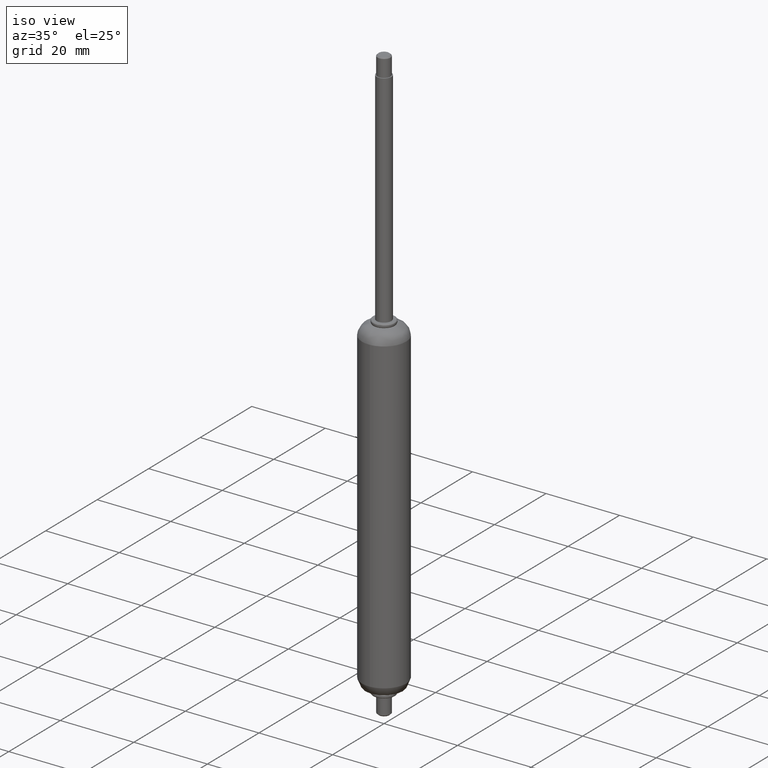
[diagram: clean part render]
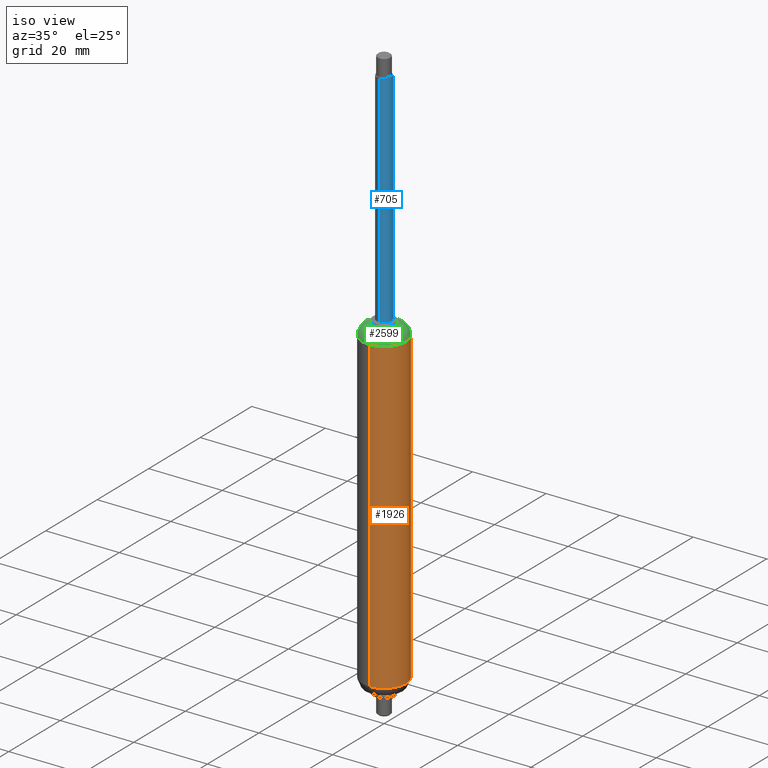
[diagram: same view with three faces highlighted in distinct colors, each labeled with its STEP entity id]
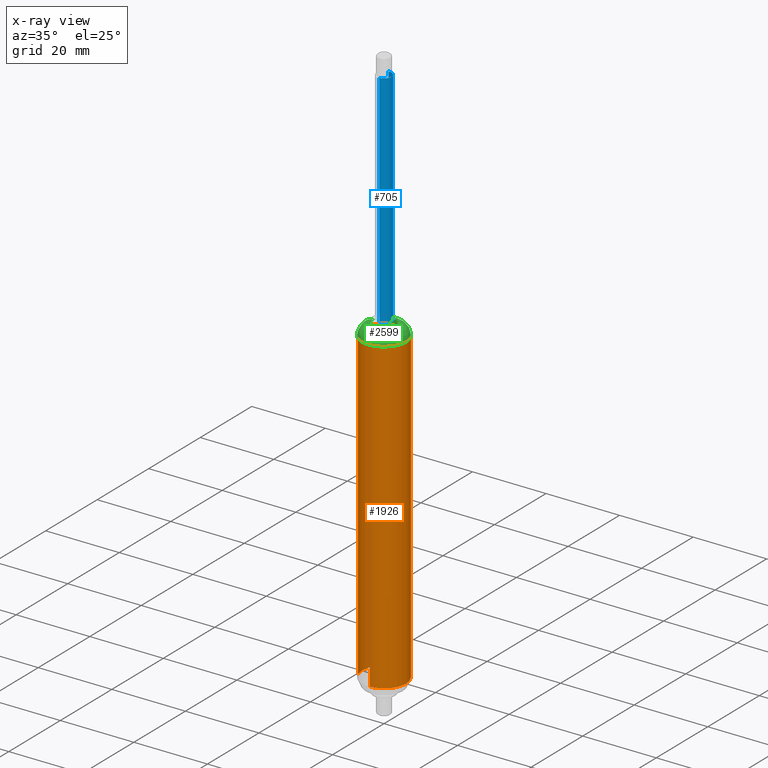
[diagram: x-ray of the same camera — body ghosted, the three highlighted faces saturated]
A machine part, iso view with three faces highlighted in distinct colors.
The next image is the same camera in x-ray (body ghosted, the three faces saturated) — at least one of them is partly hidden behind the body in this view.
Their STEP definitions:

[orange] entity #1926 — the highlighted face is a freeform B-spline surface patch.
#1760=CARTESIAN_POINT('',(-5.616861472659100,-2.109707846349191,-0.899999899999991));
#1761=CARTESIAN_POINT('',(-5.933784116190025,-1.265936710292303,-0.899999899999991));
#1762=CARTESIAN_POINT('',(-5.988808790530316,-0.366291237209097,-0.899999899999991));
#1763=CARTESIAN_POINT('',(-6.355100027739414,5.622517553321424,-0.899999899999991));
#1764=CARTESIAN_POINT('',(-0.366291237208891,5.988808790530522,-0.899999899999991));
#1765=CARTESIAN_POINT('',(5.622517553321631,6.355100027739619,-0.899999899999991));
#1766=CARTESIAN_POINT('',(5.988808790530728,0.366291237209097,-0.899999899999991));
#1767=CARTESIAN_POINT('',(6.355100027739825,-5.622517553321424,-0.899999899999991));
#1768=CARTESIAN_POINT('',(0.366291237209303,-5.988808790530522,-0.899999899999991));
#1769=CARTESIAN_POINT('',(-5.616861472659100,-2.109707846349191,-89.152504102500288));
#1770=CARTESIAN_POINT('',(-5.933784116190025,-1.265936710292303,-89.152504102500288));
#1771=CARTESIAN_POINT('',(-5.988808790530316,-0.366291237209097,-89.152504102500288));
#1772=CARTESIAN_POINT('',(-6.355100027739414,5.622517553321424,-89.152504102500288));
#1773=CARTESIAN_POINT('',(-0.366291237208891,5.988808790530522,-89.152504102500288));
#1774=CARTESIAN_POINT('',(5.622517553321631,6.355100027739619,-89.152504102500288));
#1775=CARTESIAN_POINT('',(5.988808790530728,0.366291237209097,-89.152504102500288));
#1776=CARTESIAN_POINT('',(6.355100027739825,-5.622517553321424,-89.152504102500288));
#1777=CARTESIAN_POINT('',(0.366291237209303,-5.988808790530522,-89.152504102500288));
#1785=(BOUNDED_SURFACE()B_SPLINE_SURFACE(2,1,((#1760,#1769),(#1761,#1770),(#1762,#1771),(#1763,#1772),(#1764,#1773),(#1765,#1774),(#1766,#1775),(#1767,#1776),(#1768,#1777)),.UNSPECIFIED.,.F.,.F.,.U.)B_SPLINE_SURFACE_WITH_KNOTS((3,2,2,2,3),(2,2),(0.0,1.988225099390630,11.929350596343779,21.870476093296929,31.811601590250088),(0.0,88.252504202500305),.UNSPECIFIED.)GEOMETRIC_REPRESENTATION_ITEM()RATIONAL_B_SPLINE_SURFACE(((0.906274169979695,0.906274169979695),(0.941421356237309,0.941421356237309),(1.0,1.0),(0.707106781186548,0.707106781186548),(1.0,1.0),(0.707106781186548,0.707106781186548),(1.0,1.0),(0.707106781186548,0.707106781186548),(1.0,1.0)))REPRESENTATION_ITEM('')SURFACE());
#1786=CARTESIAN_POINT('',(-5.616861472640773,-2.109707846397987,-87.000004000000004));
#1787=VERTEX_POINT('',#1786);
#1788=CARTESIAN_POINT('',(-5.999999999999116,0.0,-87.000004000000004));
#1789=VERTEX_POINT('',#1788);
#1790=CARTESIAN_POINT('',(-5.616861472640772,-2.109707846397988,-87.000004000000004));
#1791=CARTESIAN_POINT('',(-5.999999999999114,-1.089644316454284,-87.000004000000004));
#1792=CARTESIAN_POINT('',(-5.999999999999114,0.0,-87.000004000000004));
#1800=(BOUNDED_CURVE()B_SPLINE_CURVE(2,(#1790,#1791,#1792),.UNSPECIFIED.,.F.,.U.)B_SPLINE_CURVE_WITH_KNOTS((3,3),(0.940284170896165,1.0),.UNSPECIFIED.)CURVE()GEOMETRIC_REPRESENTATION_ITEM()RATIONAL_B_SPLINE_CURVE((0.893499554632407,0.930038554398655,1.0))REPRESENTATION_ITEM(''));
#1801=EDGE_CURVE('',#1787,#1789,#1800,.T.);
#1802=ORIENTED_EDGE('',*,*,#1801,.F.);
#1803=CARTESIAN_POINT('',(-5.616861472640773,-2.109707846397987,-2.999999999999997));
#1804=VERTEX_POINT('',#1803);
#1805=CARTESIAN_POINT('',(-5.616861472640773,-2.109707846397987,-2.999999999999997));
#1806=CARTESIAN_POINT('',(-5.616861472640773,-2.109707846397987,-87.000004000000004));
#1807=QUASI_UNIFORM_CURVE('',1,(#1805,#1806),.UNSPECIFIED.,.F.,.U.);
#1808=EDGE_CURVE('',#1804,#1787,#1807,.T.);
#1809=ORIENTED_EDGE('',*,*,#1808,.F.);
#1810=CARTESIAN_POINT('',(-5.999999999999116,0.0,-3.0));
#1811=VERTEX_POINT('',#1810);
#1812=CARTESIAN_POINT('',(-5.616861472640772,-2.109707846397988,-2.999999999999997));
#1813=CARTESIAN_POINT('',(-5.999999999999114,-1.089644316454284,-3.0));
#1814=CARTESIAN_POINT('',(-5.999999999999114,0.0,-3.0));
#1822=(BOUNDED_CURVE()B_SPLINE_CURVE(2,(#1812,#1813,#1814),.UNSPECIFIED.,.F.,.U.)B_SPLINE_CURVE_WITH_KNOTS((3,3),(0.940284170896165,1.0),.UNSPECIFIED.)CURVE()GEOMETRIC_REPRESENTATION_ITEM()RATIONAL_B_SPLINE_CURVE((0.893499554632407,0.930038554398655,1.0))REPRESENTATION_ITEM(''));
#1823=EDGE_CURVE('',#1804,#1811,#1822,.T.);
#1824=ORIENTED_EDGE('',*,*,#1823,.T.);
#1825=CARTESIAN_POINT('',(-2.119811799980140,5.613056024364621,-3.000000000000057));
#1826=VERTEX_POINT('',#1825);
#1827=CARTESIAN_POINT('',(-5.999999999999114,0.0,-3.0));
#1828=CARTESIAN_POINT('',(-5.999999999999114,4.147674475181805,-3.0));
#1829=CARTESIAN_POINT('',(-2.119811799980141,5.613056024364621,-3.000000000000057));
#1837=(BOUNDED_CURVE()B_SPLINE_CURVE(2,(#1827,#1828,#1829),.UNSPECIFIED.,.F.,.U.)B_SPLINE_CURVE_WITH_KNOTS((3,3),(0.0,0.189999999998876),.UNSPECIFIED.)CURVE()GEOMETRIC_REPRESENTATION_ITEM()RATIONAL_B_SPLINE_CURVE((1.0,0.777401153703094,0.893152553775483))REPRESENTATION_ITEM(''));
#1838=EDGE_CURVE('',#1811,#1826,#1837,.T.);
#1839=ORIENTED_EDGE('',*,*,#1838,.T.);
#1840=CARTESIAN_POINT('',(5.999999999999527,0.0,-3.0));
#1841=VERTEX_POINT('',#1840);
#1842=CARTESIAN_POINT('',(-2.119811799980141,5.613056024364621,-3.000000000000057));
#1843=CARTESIAN_POINT('',(-1.095221686119702,5.999999999999321,-3.000000000000001));
#1844=CARTESIAN_POINT('',(2.060574E-013,5.999999999999321,-3.0));
#1845=CARTESIAN_POINT('',(5.999999999999526,5.999999999999320,-3.0));
#1846=CARTESIAN_POINT('',(5.999999999999527,0.0,-3.0));
#1854=(BOUNDED_CURVE()B_SPLINE_CURVE(2,(#1842,#1843,#1844,#1845,#1846),.UNSPECIFIED.,.F.,.U.)B_SPLINE_CURVE_WITH_KNOTS((3,2,3),(0.189999999998876,0.250000000000000,0.500000000000000),.UNSPECIFIED.)CURVE()GEOMETRIC_REPRESENTATION_ITEM()RATIONAL_B_SPLINE_CURVE((0.893152553775483,0.929705627483454,1.0,0.707106781186548,1.0))REPRESENTATION_ITEM(''));
#1855=EDGE_CURVE('',#1826,#1841,#1854,.T.);
#1856=ORIENTED_EDGE('',*,*,#1855,.T.);
#1857=CARTESIAN_POINT('',(0.366291237578963,-5.988808790507914,-2.999999999999997));
#1858=VERTEX_POINT('',#1857);
#1859=CARTESIAN_POINT('',(5.999999999999527,0.0,-3.0));
#1860=CARTESIAN_POINT('',(5.999999999999526,-5.644236400735485,-3.000000000000000));
#1861=CARTESIAN_POINT('',(0.366291237578963,-5.988808790507915,-2.999999999999996));
#1869=(BOUNDED_CURVE()B_SPLINE_CURVE(2,(#1859,#1860,#1861),.UNSPECIFIED.,.F.,.U.)B_SPLINE_CURVE_WITH_KNOTS((3,3),(0.500000000000000,0.739332962220669),.UNSPECIFIED.)CURVE()GEOMETRIC_REPRESENTATION_ITEM()RATIONAL_B_SPLINE_CURVE((1.0,0.719603993308120,0.976072041627552))REPRESENTATION_ITEM(''));
#1870=EDGE_CURVE('',#1841,#1858,#1869,.T.);
#1871=ORIENTED_EDGE('',*,*,#1870,.T.);
#1872=CARTESIAN_POINT('',(0.366291237578961,-5.988808790507914,-87.000003999999990));
#1873=VERTEX_POINT('',#1872);
#1874=CARTESIAN_POINT('',(0.366291237578963,-5.988808790507914,-2.999999999999997));
#1875=CARTESIAN_POINT('',(0.366291237578961,-5.988808790507914,-87.000003999999990));
#1876=QUASI_UNIFORM_CURVE('',1,(#1874,#1875),.UNSPECIFIED.,.F.,.U.);
#1877=EDGE_CURVE('',#1858,#1873,#1876,.T.);
#1878=ORIENTED_EDGE('',*,*,#1877,.T.);
#1879=CARTESIAN_POINT('',(5.999999999999527,0.0,-87.000004000000004));
#1880=VERTEX_POINT('',#1879);
#1881=CARTESIAN_POINT('',(5.999999999999527,0.0,-87.000004000000004));
#1882=CARTESIAN_POINT('',(5.999999999999526,-5.644236400735485,-87.000004000000018));
#1883=CARTESIAN_POINT('',(0.366291237578961,-5.988808790507915,-87.000003999999990));
#1891=(BOUNDED_CURVE()B_SPLINE_CURVE(2,(#1881,#1882,#1883),.UNSPECIFIED.,.F.,.U.)B_SPLINE_CURVE_WITH_KNOTS((3,3),(0.500000000000000,0.739332962220669),.UNSPECIFIED.)CURVE()GEOMETRIC_REPRESENTATION_ITEM()RATIONAL_B_SPLINE_CURVE((1.0,0.719603993308120,0.976072041627552))REPRESENTATION_ITEM(''));
#1892=EDGE_CURVE('',#1880,#1873,#1891,.T.);
#1893=ORIENTED_EDGE('',*,*,#1892,.F.);
#1894=CARTESIAN_POINT('',(-2.119811799980141,5.613056024364620,-87.000004000000274));
#1895=VERTEX_POINT('',#1894);
#1896=CARTESIAN_POINT('',(-2.119811799980141,5.613056024364620,-87.000004000000288));
#1897=CARTESIAN_POINT('',(-1.095221686119702,5.999999999999320,-87.000003999999990));
#1898=CARTESIAN_POINT('',(2.060574E-013,5.999999999999321,-87.000004000000004));
#1899=CARTESIAN_POINT('',(5.999999999999526,5.999999999999320,-87.000004000000004));
#1900=CARTESIAN_POINT('',(5.999999999999527,0.0,-87.000004000000004));
#1908=(BOUNDED_CURVE()B_SPLINE_CURVE(2,(#1896,#1897,#1898,#1899,#1900),.UNSPECIFIED.,.F.,.U.)B_SPLINE_CURVE_WITH_KNOTS((3,2,3),(0.189999999998876,0.250000000000000,0.500000000000000),.UNSPECIFIED.)CURVE()GEOMETRIC_REPRESENTATION_ITEM()RATIONAL_B_SPLINE_CURVE((0.893152553775483,0.929705627483454,1.0,0.707106781186548,1.0))REPRESENTATION_ITEM(''));
#1909=EDGE_CURVE('',#1895,#1880,#1908,.T.);
#1910=ORIENTED_EDGE('',*,*,#1909,.F.);
#1911=CARTESIAN_POINT('',(-5.999999999999114,0.0,-87.000004000000004));
#1912=CARTESIAN_POINT('',(-5.999999999999114,4.147674475181805,-87.000004000000004));
#1913=CARTESIAN_POINT('',(-2.119811799980141,5.613056024364620,-87.000004000000288));
#1921=(BOUNDED_CURVE()B_SPLINE_CURVE(2,(#1911,#1912,#1913),.UNSPECIFIED.,.F.,.U.)B_SPLINE_CURVE_WITH_KNOTS((3,3),(0.0,0.189999999998876),.UNSPECIFIED.)CURVE()GEOMETRIC_REPRESENTATION_ITEM()RATIONAL_B_SPLINE_CURVE((1.0,0.777401153703094,0.893152553775483))REPRESENTATION_ITEM(''));
#1922=EDGE_CURVE('',#1789,#1895,#1921,.T.);
#1923=ORIENTED_EDGE('',*,*,#1922,.F.);
#1924=EDGE_LOOP('',(#1802,#1809,#1824,#1839,#1856,#1871,#1878,#1893,#1910,#1923));
#1925=FACE_OUTER_BOUND('',#1924,.T.);
#1926=ADVANCED_FACE('',(#1925),#1785,.T.);

[blue] entity #705 — the highlighted face is a freeform B-spline surface patch.
#603=CARTESIAN_POINT('',(-0.236068469313235,1.986019052726692,62.500000000000021));
#604=CARTESIAN_POINT('',(-0.179229457275692,1.992775230896569,62.500000000000014));
#605=CARTESIAN_POINT('',(-0.122097079069469,1.996269596843090,62.500000000000007));
#606=CARTESIAN_POINT('',(1.874172517773621,2.118366675912764,62.500000000000007));
#607=CARTESIAN_POINT('',(1.996269596843296,0.122097079069675,62.500000000000007));
#608=CARTESIAN_POINT('',(2.118366675912971,-1.874172517773415,62.500000000000007));
#609=CARTESIAN_POINT('',(0.122097079069881,-1.996269596843090,62.500000000000007));
#610=CARTESIAN_POINT('',(-0.236068469313235,1.986019052726692,-0.537500000000002));
#611=CARTESIAN_POINT('',(-0.179229457275692,1.992775230896569,-0.537500000000001));
#612=CARTESIAN_POINT('',(-0.122097079069469,1.996269596843090,-0.537500000000001));
#613=CARTESIAN_POINT('',(1.874172517773621,2.118366675912764,-0.537500000000001));
#614=CARTESIAN_POINT('',(1.996269596843296,0.122097079069675,-0.537500000000001));
#615=CARTESIAN_POINT('',(2.118366675912971,-1.874172517773415,-0.537500000000001));
#616=CARTESIAN_POINT('',(0.122097079069881,-1.996269596843090,-0.537500000000001));
#624=(BOUNDED_SURFACE()B_SPLINE_SURFACE(2,1,((#603,#610),(#604,#611),(#605,#612),(#606,#613),(#607,#614),(#608,#615),(#609,#616)),.UNSPECIFIED.,.F.,.F.,.U.)B_SPLINE_SURFACE_WITH_KNOTS((3,2,2,3),(2,2),(0.0,0.132548339959348,3.446256838943039,6.759965337926730),(0.0,63.037500000000023),.UNSPECIFIED.)GEOMETRIC_REPRESENTATION_ITEM()RATIONAL_B_SPLINE_SURFACE(((0.977505800795127,0.977505800795127),(0.988284271247462,0.988284271247462),(1.0,1.0),(0.707106781186548,0.707106781186548),(1.0,1.0),(0.707106781186548,0.707106781186548),(1.0,1.0)))REPRESENTATION_ITEM('')SURFACE());
#625=CARTESIAN_POINT('',(-0.236068469799932,1.986019052668841,61.0));
#626=VERTEX_POINT('',#625);
#627=CARTESIAN_POINT('',(1.999999999999561,0.0,61.0));
#628=VERTEX_POINT('',#627);
#629=CARTESIAN_POINT('',(-0.236068469799932,1.986019052668841,61.000000000000007));
#630=CARTESIAN_POINT('',(-0.118448239795418,1.999999999999355,61.000000000000007));
#631=CARTESIAN_POINT('',(2.060574E-013,1.999999999999355,61.0));
#632=CARTESIAN_POINT('',(1.999999999999561,1.999999999999355,60.999999999999993));
#633=CARTESIAN_POINT('',(1.999999999999561,0.0,61.0));
#641=(BOUNDED_CURVE()B_SPLINE_CURVE(2,(#629,#630,#631,#632,#633),.UNSPECIFIED.,.F.,.U.)B_SPLINE_CURVE_WITH_KNOTS((3,2,3),(0.229562473432812,0.250000000000000,0.500000000000000),.UNSPECIFIED.)CURVE()GEOMETRIC_REPRESENTATION_ITEM()RATIONAL_B_SPLINE_CURVE((0.956026754025531,0.976055948236603,1.0,0.707106781186548,1.0))REPRESENTATION_ITEM(''));
#642=EDGE_CURVE('',#626,#628,#641,.T.);
#643=ORIENTED_EDGE('',*,*,#642,.T.);
#644=CARTESIAN_POINT('',(0.122097526820486,-1.996269569457389,61.0));
#645=VERTEX_POINT('',#644);
#646=CARTESIAN_POINT('',(1.999999999999561,0.0,61.0));
#647=CARTESIAN_POINT('',(1.999999999999562,-1.881411288256214,60.999999999999979));
#648=CARTESIAN_POINT('',(0.122097526820486,-1.996269569457389,61.0));
#656=(BOUNDED_CURVE()B_SPLINE_CURVE(2,(#646,#647,#648),.UNSPECIFIED.,.F.,.U.)B_SPLINE_CURVE_WITH_KNOTS((3,3),(0.500000000000000,0.739332884839674),.UNSPECIFIED.)CURVE()GEOMETRIC_REPRESENTATION_ITEM()RATIONAL_B_SPLINE_CURVE((1.0,0.719604083965595,0.976071875785406))REPRESENTATION_ITEM(''));
#657=EDGE_CURVE('',#628,#645,#656,.T.);
#658=ORIENTED_EDGE('',*,*,#657,.T.);
#659=CARTESIAN_POINT('',(0.122097526820486,-1.996269569457389,1.0));
#660=VERTEX_POINT('',#659);
#661=CARTESIAN_POINT('',(0.122097526820486,-1.996269569457389,61.0));
#662=CARTESIAN_POINT('',(0.122097526820486,-1.996269569457389,1.0));
#663=QUASI_UNIFORM_CURVE('',1,(#661,#662),.UNSPECIFIED.,.F.,.U.);
#664=EDGE_CURVE('',#645,#660,#663,.T.);
#665=ORIENTED_EDGE('',*,*,#664,.T.);
#666=CARTESIAN_POINT('',(1.999999999999561,0.0,1.0));
#667=VERTEX_POINT('',#666);
#668=CARTESIAN_POINT('',(1.999999999999561,0.0,1.0));
#669=CARTESIAN_POINT('',(1.999999999999562,-1.881411288256214,1.0));
#670=CARTESIAN_POINT('',(0.122097526820486,-1.996269569457389,1.0));
#678=(BOUNDED_CURVE()B_SPLINE_CURVE(2,(#668,#669,#670),.UNSPECIFIED.,.F.,.U.)B_SPLINE_CURVE_WITH_KNOTS((3,3),(0.500000000000000,0.739332884839674),.UNSPECIFIED.)CURVE()GEOMETRIC_REPRESENTATION_ITEM()RATIONAL_B_SPLINE_CURVE((1.0,0.719604083965595,0.976071875785406))REPRESENTATION_ITEM(''));
#679=EDGE_CURVE('',#667,#660,#678,.T.);
#680=ORIENTED_EDGE('',*,*,#679,.F.);
#681=CARTESIAN_POINT('',(-0.236068469799932,1.986019052668841,1.0));
#682=VERTEX_POINT('',#681);
#683=CARTESIAN_POINT('',(-0.236068469799932,1.986019052668841,1.0));
#684=CARTESIAN_POINT('',(-0.118448239795418,1.999999999999355,1.0));
#685=CARTESIAN_POINT('',(2.060574E-013,1.999999999999355,1.0));
#686=CARTESIAN_POINT('',(1.999999999999561,1.999999999999355,1.0));
#687=CARTESIAN_POINT('',(1.999999999999561,0.0,1.0));
#695=(BOUNDED_CURVE()B_SPLINE_CURVE(2,(#683,#684,#685,#686,#687),.UNSPECIFIED.,.F.,.U.)B_SPLINE_CURVE_WITH_KNOTS((3,2,3),(0.229562473432812,0.250000000000000,0.500000000000000),.UNSPECIFIED.)CURVE()GEOMETRIC_REPRESENTATION_ITEM()RATIONAL_B_SPLINE_CURVE((0.956026754025531,0.976055948236603,1.0,0.707106781186548,1.0))REPRESENTATION_ITEM(''));
#696=EDGE_CURVE('',#682,#667,#695,.T.);
#697=ORIENTED_EDGE('',*,*,#696,.F.);
#698=CARTESIAN_POINT('',(-0.236068469799932,1.986019052668841,61.0));
#699=CARTESIAN_POINT('',(-0.236068469799932,1.986019052668841,1.0));
#700=QUASI_UNIFORM_CURVE('',1,(#698,#699),.UNSPECIFIED.,.F.,.U.);
#701=EDGE_CURVE('',#626,#682,#700,.T.);
#702=ORIENTED_EDGE('',*,*,#701,.F.);
#703=EDGE_LOOP('',(#643,#658,#665,#680,#697,#702));
#704=FACE_OUTER_BOUND('',#703,.T.);
#705=ADVANCED_FACE('',(#704),#624,.T.);

[green] entity #2599 — the highlighted face is a freeform B-spline surface patch.
#1803=CARTESIAN_POINT('',(-5.616861472640773,-2.109707846397987,-2.999999999999997));
#1804=VERTEX_POINT('',#1803);
#1810=CARTESIAN_POINT('',(-5.999999999999116,0.0,-3.0));
#1811=VERTEX_POINT('',#1810);
#1812=CARTESIAN_POINT('',(-5.616861472640772,-2.109707846397988,-2.999999999999997));
#1813=CARTESIAN_POINT('',(-5.999999999999114,-1.089644316454284,-3.0));
#1814=CARTESIAN_POINT('',(-5.999999999999114,0.0,-3.0));
#1822=(BOUNDED_CURVE()B_SPLINE_CURVE(2,(#1812,#1813,#1814),.UNSPECIFIED.,.F.,.U.)B_SPLINE_CURVE_WITH_KNOTS((3,3),(0.940284170896165,1.0),.UNSPECIFIED.)CURVE()GEOMETRIC_REPRESENTATION_ITEM()RATIONAL_B_SPLINE_CURVE((0.893499554632407,0.930038554398655,1.0))REPRESENTATION_ITEM(''));
#1823=EDGE_CURVE('',#1804,#1811,#1822,.T.);
#1825=CARTESIAN_POINT('',(-2.119811799980140,5.613056024364621,-3.000000000000057));
#1826=VERTEX_POINT('',#1825);
#1840=CARTESIAN_POINT('',(5.999999999999527,0.0,-3.0));
#1841=VERTEX_POINT('',#1840);
#1842=CARTESIAN_POINT('',(-2.119811799980141,5.613056024364621,-3.000000000000057));
#1843=CARTESIAN_POINT('',(-1.095221686119702,5.999999999999321,-3.000000000000001));
#1844=CARTESIAN_POINT('',(2.060574E-013,5.999999999999321,-3.0));
#1845=CARTESIAN_POINT('',(5.999999999999526,5.999999999999320,-3.0));
#1846=CARTESIAN_POINT('',(5.999999999999527,0.0,-3.0));
#1854=(BOUNDED_CURVE()B_SPLINE_CURVE(2,(#1842,#1843,#1844,#1845,#1846),.UNSPECIFIED.,.F.,.U.)B_SPLINE_CURVE_WITH_KNOTS((3,2,3),(0.189999999998876,0.250000000000000,0.500000000000000),.UNSPECIFIED.)CURVE()GEOMETRIC_REPRESENTATION_ITEM()RATIONAL_B_SPLINE_CURVE((0.893152553775483,0.929705627483454,1.0,0.707106781186548,1.0))REPRESENTATION_ITEM(''));
#1855=EDGE_CURVE('',#1826,#1841,#1854,.T.);
#1857=CARTESIAN_POINT('',(0.366291237578963,-5.988808790507914,-2.999999999999997));
#1858=VERTEX_POINT('',#1857);
#1859=CARTESIAN_POINT('',(5.999999999999527,0.0,-3.0));
#1860=CARTESIAN_POINT('',(5.999999999999526,-5.644236400735485,-3.000000000000000));
#1861=CARTESIAN_POINT('',(0.366291237578963,-5.988808790507915,-2.999999999999996));
#1869=(BOUNDED_CURVE()B_SPLINE_CURVE(2,(#1859,#1860,#1861),.UNSPECIFIED.,.F.,.U.)B_SPLINE_CURVE_WITH_KNOTS((3,3),(0.500000000000000,0.739332962220669),.UNSPECIFIED.)CURVE()GEOMETRIC_REPRESENTATION_ITEM()RATIONAL_B_SPLINE_CURVE((1.0,0.719603993308120,0.976072041627552))REPRESENTATION_ITEM(''));
#1870=EDGE_CURVE('',#1841,#1858,#1869,.T.);
#1957=CARTESIAN_POINT('',(0.366291237578963,-5.988808790507914,-2.999999999999997));
#1958=CARTESIAN_POINT('',(0.183316580162413,-5.999999999999321,-3.000000000000000));
#1959=CARTESIAN_POINT('',(2.060574E-013,-5.999999999999321,-3.0));
#1960=CARTESIAN_POINT('',(-4.155657574088701,-5.999999999999320,-2.999999999999999));
#1961=CARTESIAN_POINT('',(-5.616861472640773,-2.109707846397987,-2.999999999999996));
#1969=(BOUNDED_CURVE()B_SPLINE_CURVE(2,(#1957,#1958,#1959,#1960,#1961),.UNSPECIFIED.,.F.,.U.)B_SPLINE_CURVE_WITH_KNOTS((3,2,3),(0.739332962220667,0.750000000000000,0.940284170896165),.UNSPECIFIED.)CURVE()GEOMETRIC_REPRESENTATION_ITEM()RATIONAL_B_SPLINE_CURVE((0.976072041627550,0.987502787878426,1.0,0.777068226787893,0.893499554632407))REPRESENTATION_ITEM(''));
#1970=EDGE_CURVE('',#1858,#1804,#1969,.T.);
#2460=CARTESIAN_POINT('',(-2.117091717534528,5.605853509957333,-3.214790373823490));
#2461=CARTESIAN_POINT('',(-2.119811799960155,5.613056024372169,-3.107533170428518));
#2462=CARTESIAN_POINT('',(-2.119811799960154,5.613056024372171,-3.000000000000000));
#2463=CARTESIAN_POINT('',(-2.119811799960154,5.613056024372169,-0.000001006076534));
#2464=CARTESIAN_POINT('',(-1.059906255428733,2.806528953379919,-1.686904E-013));
#2465=CARTESIAN_POINT('',(-1.021914390802991,2.705930181065020,0.000000036062212));
#2466=CARTESIAN_POINT('',(-0.984020026376386,2.605589579819904,-0.007699032419067));
#2467=CARTESIAN_POINT('',(-1.093816328668926,5.992300970041069,-3.214790373823491));
#2468=CARTESIAN_POINT('',(-1.095221686097626,5.999999999999324,-3.107533170428519));
#2469=CARTESIAN_POINT('',(-1.095221686097626,5.999999999999325,-3.000000000000000));
#2470=CARTESIAN_POINT('',(-1.095221686097625,5.999999999999323,-0.000001006076534));
#2471=CARTESIAN_POINT('',(-0.547611026694819,3.000001006076027,-1.686946E-013));
#2472=CARTESIAN_POINT('',(-0.527982154908096,2.892467314755561,0.000000036062212));
#2473=CARTESIAN_POINT('',(-0.508403657561450,2.785209591893626,-0.007699032419067));
#2474=CARTESIAN_POINT('',(2.059984E-013,5.992300970041069,-3.214790373823491));
#2475=CARTESIAN_POINT('',(2.059984E-013,5.999999999999324,-3.107533170428519));
#2476=CARTESIAN_POINT('',(2.059984E-013,5.999999999999325,-3.0));
#2477=CARTESIAN_POINT('',(2.059984E-013,5.999999999999323,-0.000001006076534));
#2478=CARTESIAN_POINT('',(2.059984E-013,3.000001006076028,-1.687019E-013));
#2479=CARTESIAN_POINT('',(2.059984E-013,2.892467314755561,0.000000036062212));
#2480=CARTESIAN_POINT('',(2.059984E-013,2.785209591893626,-0.007699032419067));
#2481=CARTESIAN_POINT('',(5.992300970041275,5.992300970041068,-3.214790373823490));
#2482=CARTESIAN_POINT('',(5.999999999999532,5.999999999999325,-3.107533170428519));
#2483=CARTESIAN_POINT('',(5.999999999999532,5.999999999999326,-3.0));
#2484=CARTESIAN_POINT('',(5.999999999999529,5.999999999999323,-0.000001006076534));
#2485=CARTESIAN_POINT('',(3.000001006076234,3.000001006076029,-1.686623E-013));
#2486=CARTESIAN_POINT('',(2.892467314755765,2.892467314755560,0.000000036062212));
#2487=CARTESIAN_POINT('',(2.785209591893833,2.785209591893626,-0.007699032419067));
#2488=CARTESIAN_POINT('',(5.992300970041275,0.0,-3.214790373823491));
#2489=CARTESIAN_POINT('',(5.999999999999532,0.0,-3.107533170428519));
#2490=CARTESIAN_POINT('',(5.999999999999532,0.0,-3.0));
#2491=CARTESIAN_POINT('',(5.999999999999529,0.0,-0.000001006076534));
#2492=CARTESIAN_POINT('',(3.000001006076234,0.0,-1.687019E-013));
#2493=CARTESIAN_POINT('',(2.892467314755766,0.0,0.000000036062212));
#2494=CARTESIAN_POINT('',(2.785209591893832,0.0,-0.007699032419067));
#2495=CARTESIAN_POINT('',(5.992300970041275,-5.992300970041068,-3.214790373823490));
#2496=CARTESIAN_POINT('',(5.999999999999532,-5.999999999999325,-3.107533170428519));
#2497=CARTESIAN_POINT('',(5.999999999999532,-5.999999999999326,-3.0));
#2498=CARTESIAN_POINT('',(5.999999999999529,-5.999999999999323,-0.000001006076534));
#2499=CARTESIAN_POINT('',(3.000001006076234,-3.000001006076029,-1.686623E-013));
#2500=CARTESIAN_POINT('',(2.892467314755765,-2.892467314755560,0.000000036062212));
#2501=CARTESIAN_POINT('',(2.785209591893833,-2.785209591893626,-0.007699032419067));
#2502=CARTESIAN_POINT('',(2.059984E-013,-5.992300970041069,-3.214790373823491));
#2503=CARTESIAN_POINT('',(2.059984E-013,-5.999999999999324,-3.107533170428519));
#2504=CARTESIAN_POINT('',(2.059984E-013,-5.999999999999325,-3.0));
#2505=CARTESIAN_POINT('',(2.059984E-013,-5.999999999999323,-0.000001006076534));
#2506=CARTESIAN_POINT('',(2.059984E-013,-3.000001006076028,-1.687019E-013));
#2507=CARTESIAN_POINT('',(2.059984E-013,-2.892467314755561,0.000000036062212));
#2508=CARTESIAN_POINT('',(2.059984E-013,-2.785209591893626,-0.007699032419067));
#2509=CARTESIAN_POINT('',(-5.992300970040865,-5.992300970041068,-3.214790373823490));
#2510=CARTESIAN_POINT('',(-5.999999999999120,-5.999999999999325,-3.107533170428519));
#2511=CARTESIAN_POINT('',(-5.999999999999120,-5.999999999999326,-3.0));
#2512=CARTESIAN_POINT('',(-5.999999999999117,-5.999999999999323,-0.000001006076534));
#2513=CARTESIAN_POINT('',(-3.000001006075822,-3.000001006076029,-1.686623E-013));
#2514=CARTESIAN_POINT('',(-2.892467314755355,-2.892467314755560,0.000000036062212));
#2515=CARTESIAN_POINT('',(-2.785209591893420,-2.785209591893626,-0.007699032419067));
#2516=CARTESIAN_POINT('',(-5.992300970040862,0.0,-3.214790373823491));
#2517=CARTESIAN_POINT('',(-5.999999999999120,0.0,-3.107533170428519));
#2518=CARTESIAN_POINT('',(-5.999999999999119,0.0,-3.0));
#2519=CARTESIAN_POINT('',(-5.999999999999117,0.0,-0.000001006076534));
#2520=CARTESIAN_POINT('',(-3.000001006075822,0.0,-1.687019E-013));
#2521=CARTESIAN_POINT('',(-2.892467314755354,0.0,0.000000036062212));
#2522=CARTESIAN_POINT('',(-2.785209591893421,0.0,-0.007699032419067));
#2530=(BOUNDED_SURFACE()B_SPLINE_SURFACE(2,2,((#2460,#2467,#2474,#2481,#2488,#2495,#2502,#2509,#2516),(#2461,#2468,#2475,#2482,#2489,#2496,#2503,#2510,#2517),(#2462,#2469,#2476,#2483,#2490,#2497,#2504,#2511,#2518),(#2463,#2470,#2477,#2484,#2491,#2498,#2505,#2512,#2519),(#2464,#2471,#2478,#2485,#2492,#2499,#2506,#2513,#2520),(#2465,#2472,#2479,#2486,#2493,#2500,#2507,#2514,#2521),(#2466,#2473,#2480,#2487,#2494,#2501,#2508,#2515,#2522)),.UNSPECIFIED.,.F.,.F.,.U.)B_SPLINE_SURFACE_WITH_KNOTS((3,2,2,3),(3,2,2,2,3),(0.0,0.248279609605218,5.218841179390227,5.467121974069674),(0.0,2.385870119268759,12.326995616221920,22.268121113175091,32.209246610128247),.UNSPECIFIED.)GEOMETRIC_REPRESENTATION_ITEM()RATIONAL_B_SPLINE_SURFACE(((0.868324262371880,0.903861215863907,0.972201511040883,0.687450281136817,0.972201511040883,0.687450281136817,0.972201511040883,0.687450281136817,0.972201511040883),(0.880085719549076,0.916104021282557,0.985369986154637,0.696761799187638,0.985369986154637,0.696761799187638,0.985369986154637,0.696761799187638,0.985369986154637),(0.893152553776853,0.929705627484771,1.0,0.707106781186548,1.0,0.707106781186548,1.0,0.707106781186548,1.0),(0.631554333308352,0.657401263934431,0.707106899753814,0.500000083839718,0.707106899753814,0.500000083839718,0.707106899753814,0.500000083839718,0.707106899753814),(0.893152553776853,0.929705627484771,1.0,0.707106781186548,1.0,0.707106781186548,1.0,0.707106781186548,1.0),(0.880085657179200,0.916103956360138,0.985369916323480,0.696761749809554,0.985369916323480,0.696761749809554,0.985369916323480,0.696761749809554,0.985369916323480),(0.868324150093662,0.903861098990602,0.972201385330871,0.687450192246415,0.972201385330871,0.687450192246415,0.972201385330871,0.687450192246415,0.972201385330871)))REPRESENTATION_ITEM('')SURFACE());
#2531=ORIENTED_EDGE('',*,*,#1855,.F.);
#2532=CARTESIAN_POINT('',(-1.059905900274523,2.806528012414065,3.947610E-018));
#2533=VERTEX_POINT('',#2532);
#2534=CARTESIAN_POINT('',(-2.119811799980140,5.613056024364621,-3.000000000000057));
#2535=CARTESIAN_POINT('',(-2.119811799960194,5.613056024372274,-6.355046E-010));
#2536=CARTESIAN_POINT('',(-1.059905900274523,2.806528012414065,3.947610E-018));
#2544=(BOUNDED_CURVE()B_SPLINE_CURVE(2,(#2534,#2535,#2536),.UNSPECIFIED.,.F.,.U.)B_SPLINE_CURVE_WITH_KNOTS((3,3),(0.499999999999993,0.750000059246205),.UNSPECIFIED.)CURVE()GEOMETRIC_REPRESENTATION_ITEM()RATIONAL_B_SPLINE_CURVE((0.893152553776866,0.631554271313538,0.893152677766496))REPRESENTATION_ITEM(''));
#2545=EDGE_CURVE('',#1826,#2533,#2544,.T.);
#2546=ORIENTED_EDGE('',*,*,#2545,.T.);
#2547=CARTESIAN_POINT('',(2.999999999999531,0.0,0.0));
#2548=VERTEX_POINT('',#2547);
#2549=CARTESIAN_POINT('',(-1.059905900274523,2.806528012414065,3.947610E-018));
#2550=CARTESIAN_POINT('',(-0.547610843250154,2.999999999999326,0.0));
#2551=CARTESIAN_POINT('',(2.060574E-013,2.999999999999325,0.0));
#2552=CARTESIAN_POINT('',(2.999999999999532,2.999999999999325,0.0));
#2553=CARTESIAN_POINT('',(2.999999999999531,0.0,0.0));
#2561=(BOUNDED_CURVE()B_SPLINE_CURVE(2,(#2549,#2550,#2551,#2552,#2553),.UNSPECIFIED.,.F.,.U.)B_SPLINE_CURVE_WITH_KNOTS((3,2,3),(0.189999999979474,0.250000000000000,0.500000000000000),.UNSPECIFIED.)CURVE()GEOMETRIC_REPRESENTATION_ITEM()RATIONAL_B_SPLINE_CURVE((0.893152553751843,0.929705627460723,1.0,0.707106781186548,1.0))REPRESENTATION_ITEM(''));
#2562=EDGE_CURVE('',#2533,#2548,#2561,.T.);
#2563=ORIENTED_EDGE('',*,*,#2562,.T.);
#2564=CARTESIAN_POINT('',(-3.000000503037471,0.0,-8.435093E-014));
#2565=VERTEX_POINT('',#2564);
#2566=CARTESIAN_POINT('',(2.999999999999531,0.0,0.0));
#2567=CARTESIAN_POINT('',(2.999999999999532,-2.999999999999325,0.0));
#2568=CARTESIAN_POINT('',(2.060574E-013,-2.999999999999325,0.0));
#2569=CARTESIAN_POINT('',(-2.999999999999120,-2.999999999999325,0.0));
#2570=CARTESIAN_POINT('',(-3.000000503037471,0.0,-8.435093E-014));
#2578=(BOUNDED_CURVE()B_SPLINE_CURVE(2,(#2566,#2567,#2568,#2569,#2570),.UNSPECIFIED.,.F.,.U.)B_SPLINE_CURVE_WITH_KNOTS((3,2,3),(0.500000000000000,0.750000000000000,1.0),.UNSPECIFIED.)CURVE()GEOMETRIC_REPRESENTATION_ITEM()RATIONAL_B_SPLINE_CURVE((1.0,0.707106781186548,1.0,0.707106781186548,1.0))REPRESENTATION_ITEM(''));
#2579=EDGE_CURVE('',#2548,#2565,#2578,.T.);
#2580=ORIENTED_EDGE('',*,*,#2579,.T.);
#2581=CARTESIAN_POINT('',(-5.999999999999119,0.0,-3.0));
#2582=CARTESIAN_POINT('',(-5.999999999999118,0.0,-0.000001006076549));
#2583=CARTESIAN_POINT('',(-3.000000503037471,0.0,-8.435093E-014));
#2591=(BOUNDED_CURVE()B_SPLINE_CURVE(2,(#2581,#2582,#2583),.UNSPECIFIED.,.F.,.U.)B_SPLINE_CURVE_WITH_KNOTS((3,3),(0.500000000000000,0.749999999999999),.UNSPECIFIED.)CURVE()GEOMETRIC_REPRESENTATION_ITEM()RATIONAL_B_SPLINE_CURVE((1.0,0.707106899753815,0.999999999999998))REPRESENTATION_ITEM(''));
#2592=EDGE_CURVE('',#1811,#2565,#2591,.T.);
#2593=ORIENTED_EDGE('',*,*,#2592,.F.);
#2594=ORIENTED_EDGE('',*,*,#1823,.F.);
#2595=ORIENTED_EDGE('',*,*,#1970,.F.);
#2596=ORIENTED_EDGE('',*,*,#1870,.F.);
#2597=EDGE_LOOP('',(#2531,#2546,#2563,#2580,#2593,#2594,#2595,#2596));
#2598=FACE_OUTER_BOUND('',#2597,.T.);
#2599=ADVANCED_FACE('',(#2598),#2530,.T.);